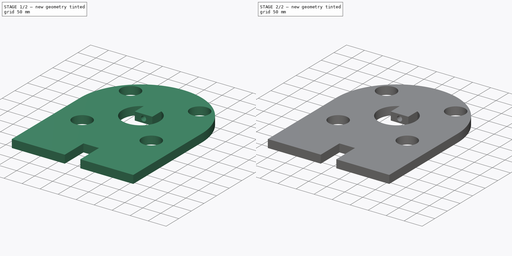
[diagram: build sequence overview — one tinted view per stage of 2, left to right]
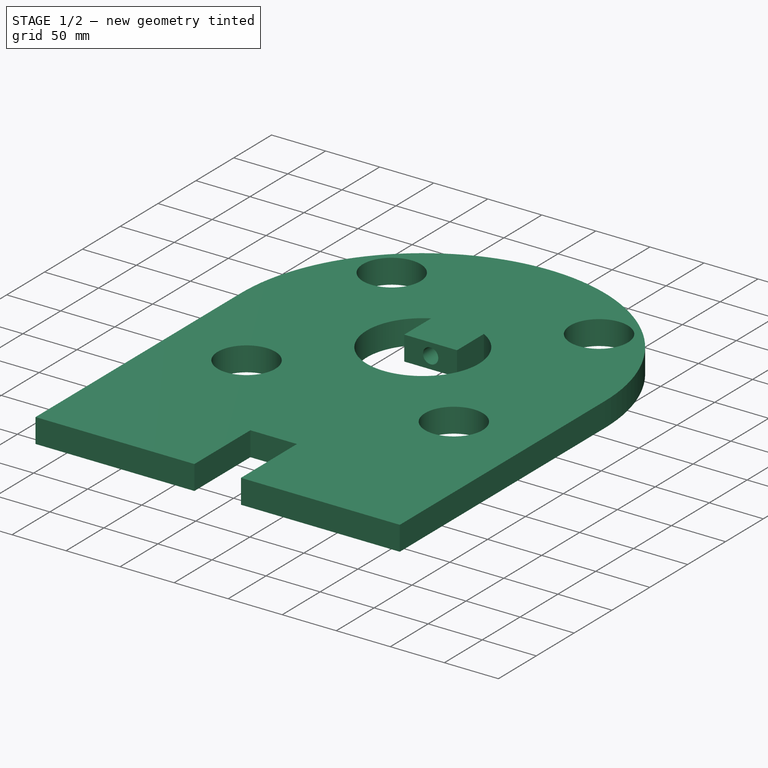
[diagram: stage 1 of 2 — iso view after this stage's code; geometry added in this stage tinted green]
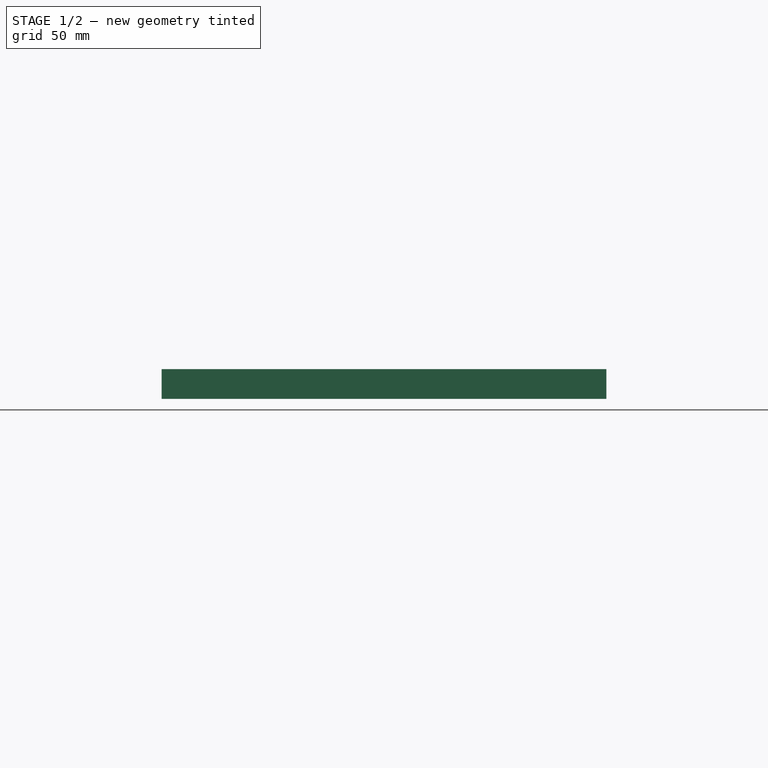
[diagram: stage 1 of 2 — front view after this stage's code; geometry added in this stage tinted green]
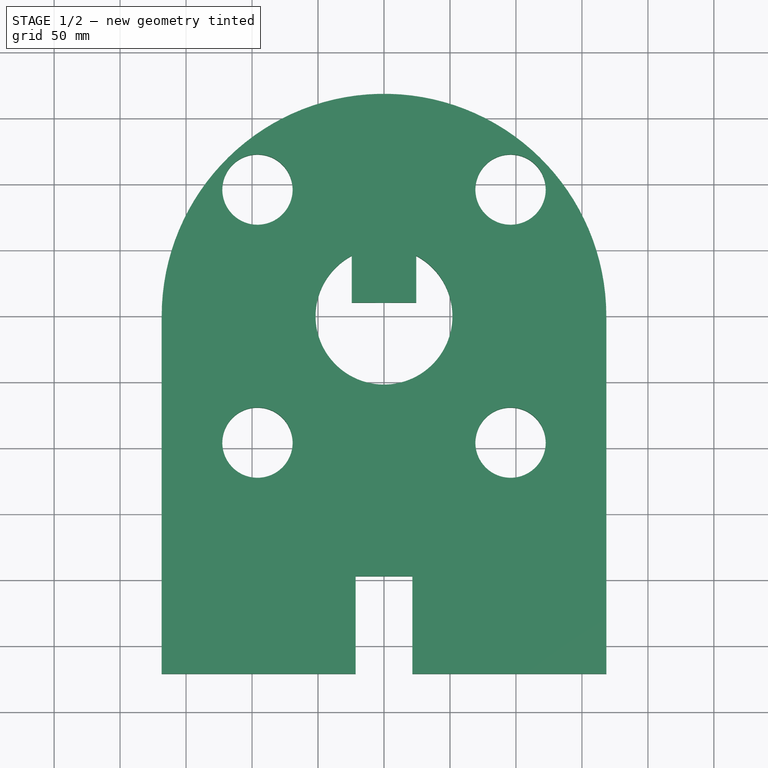
[diagram: stage 1 of 2 — top view after this stage's code; geometry added in this stage tinted green]
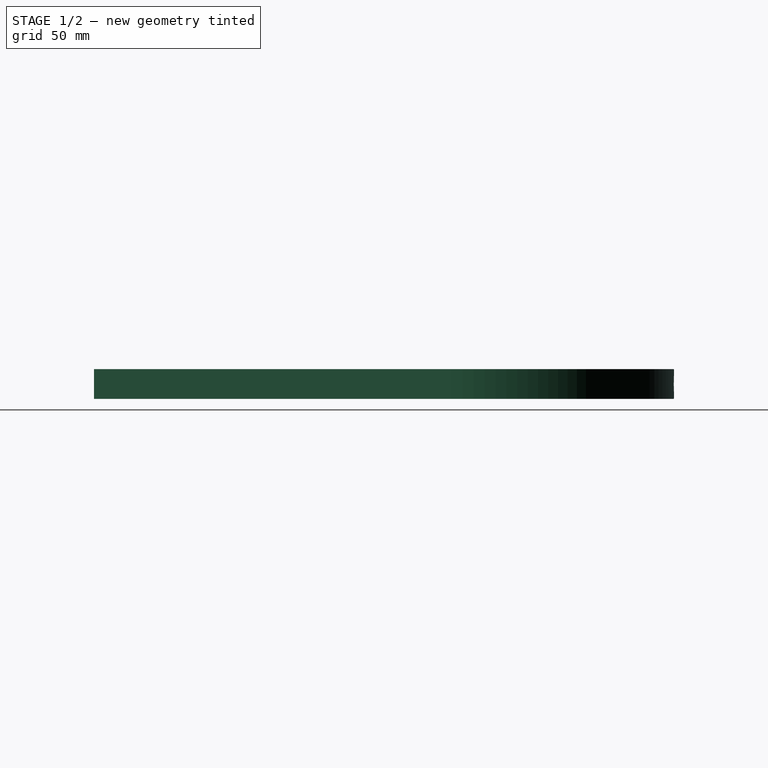
[diagram: stage 1 of 2 — right view after this stage's code; geometry added in this stage tinted green]
FCSTD DOCUMENT  (FreeCAD 0.14R3637 (Git))
Label: Vexta_motor_adapter_squared
License: CC-BY 3.0
LicenseURL: http://creativecommons.org/licenses/by/3.0/
objects: Sketcher::SketchObject×4, PartDesign::Pocket×3, PartDesign::Pad×1
note: 12 computed .brp shape members not serialized (recipe doc carries the construction recipe); baked Part::Feature solids carry a one-line shape summary decoded from their .brp

FEATURE [Sketcher::SketchObject] Sketch
  sketch-geometry (25):
    g0: Circle [constr] CenterX=0 CenterY=0 CenterZ=0 NormalX=0 NormalY=0 NormalZ=1 Radius=135.618
    g1: LineSegment [constr] StartX=95.8961 StartY=95.8961 StartZ=0 EndX=-95.8961 EndY=95.8961 EndZ=0
    g2: LineSegment [constr] StartX=-95.8961 StartY=95.8961 StartZ=0 EndX=-95.8961 EndY=-95.8961 EndZ=0
    g3: LineSegment [constr] StartX=-95.8961 StartY=-95.8961 StartZ=0 EndX=95.8961 EndY=-95.8961 EndZ=0
    g4: LineSegment [constr] StartX=95.8961 StartY=-95.8961 StartZ=0 EndX=95.8961 EndY=95.8961 EndZ=0
    g5: Circle CenterX=-95.8961 CenterY=95.8961 CenterZ=0 NormalX=0 NormalY=0 NormalZ=1 Radius=26.6524
    g6: Circle CenterX=-95.8961 CenterY=-95.8961 CenterZ=0 NormalX=0 NormalY=0 NormalZ=1 Radius=26.6524
    g7: Circle CenterX=95.8961 CenterY=-95.8961 CenterZ=0 NormalX=0 NormalY=0 NormalZ=1 Radius=26.6524
    g8: Circle CenterX=95.8961 CenterY=95.8961 CenterZ=0 NormalX=0 NormalY=0 NormalZ=1 Radius=26.6524
    g9: ArcOfCircle CenterX=0 CenterY=0 CenterZ=0 NormalX=0 NormalY=0 NormalZ=1 Radius=51.8819 StartAngle=2.06037 EndAngle=7.36441
    g10: LineSegment [constr] StartX=-24.3975 StartY=45.7875 StartZ=0 EndX=24.3975 EndY=45.7875 EndZ=0
    g11: LineSegment StartX=24.3975 StartY=45.7875 StartZ=0 EndX=24.3975 EndY=10.293 EndZ=0
    g12: LineSegment StartX=24.3975 StartY=10.293 StartZ=0 EndX=-24.3975 EndY=10.293 EndZ=0
    g13: LineSegment StartX=-24.3975 StartY=10.293 StartZ=0 EndX=-24.3975 EndY=45.7875 EndZ=0
    g14: ArcOfCircle CenterX=0 CenterY=0 CenterZ=0 NormalX=0 NormalY=0 NormalZ=1 Radius=168.48 StartAngle=0 EndAngle=3.14159
    g15: LineSegment [constr] StartX=-168.48 StartY=0 StartZ=0 EndX=168.48 EndY=0 EndZ=0
    g16: LineSegment StartX=168.48 StartY=0 StartZ=0 EndX=168.48 EndY=-271.053 EndZ=0
    g17: LineSegment StartX=168.48 StartY=-271.053 StartZ=0 EndX=21.541 EndY=-271.053 EndZ=0
    g18: LineSegment StartX=-168.48 StartY=-271.053 StartZ=0 EndX=-168.48 EndY=0 EndZ=0
    g19: GeomPoint [constr] X=-168.48 Y=0 Z=0
    g20: LineSegment StartX=-21.541 StartY=-197.088 StartZ=0 EndX=21.541 EndY=-197.088 EndZ=0
    g21: LineSegment StartX=21.541 StartY=-197.088 StartZ=0 EndX=21.541 EndY=-271.053 EndZ=0
    g22: LineSegment StartX=-21.541 StartY=-271.053 StartZ=0 EndX=-21.541 EndY=-197.088 EndZ=0
    g23: Circle [constr] CenterX=0 CenterY=-126.88 CenterZ=0 NormalX=0 NormalY=0 NormalZ=1 Radius=73.4383
    g24: LineSegment StartX=-21.541 StartY=-271.053 StartZ=0 EndX=-168.48 EndY=-271.053 EndZ=0
  constraints (58):
    c: Coincident(g1,g2)
    c: Coincident(g2,g3)
    c: Coincident(g3,g4)
    c: Coincident(g4,g1)
    c: Horizontal(g1)
    c: Horizontal(g3)
    c: Vertical(g2)
    c: Vertical(g4)
    c: PointOnObject(g1,g0)
    c: PointOnObject(g2,g0)
    c: PointOnObject(g1,g0)
    c: Coincident(g-1,g0)
    c: Equal(g2,g1)
    c: Coincident(g5,g1)
    c: Coincident(g6,g2)
    c: Coincident(g8,g1)
    c: Coincident(g7,g3)
    c: Equal(g8,g7)
    c: Equal(g7,g5)
    c: Equal(g5,g6)
    c: Coincident(g9,g-1)
    c: Coincident(g11,g12)
    c: Coincident(g12,g13)
    c: Horizontal(g10)
    c: Horizontal(g12)
    c: Vertical(g11)
    c: Vertical(g13)
    c: PointOnObject(g13,g9)
    c: PointOnObject(g11,g9)
    c: Coincident(g14,g-1)
    c: Coincident(g9,g10)
    c: Coincident(g9,g10)
    c: Coincident(g16,g17)
    c: Coincident(g24,g18)
    c: Coincident(g18,g15)
    c: Horizontal(g15)
    c: Horizontal(g17)
    c: Vertical(g16)
    c: Vertical(g18)
    c: PointOnObject(g16,g14)
    c: Equal(g12,g10)
    c: Coincident(g13,g9)
    c: PointOnObject(g19,g-1)
    c: PointOnObject(g19,g14)
    c: Coincident(g15,g19)
    c: Coincident(g20,g21)
    c: Coincident(g22,g20)
    c: Horizontal(g20)
    c: Vertical(g21)
    c: Vertical(g22)
    c: PointOnObject(g23,g-2)
    c: PointOnObject(g20,g23)
    c: PointOnObject(g20,g23)
    c: Tangent(g17,g24)
    c: Coincident(g22,g24)
    c: Coincident(g21,g17)
    c: Coincident(g14,g15)
    c: PointOnObject(g14,g15)
FEATURE [PartDesign::Pad] Pad
  Length = 22.5
  Length2 = 100
  Sketch = -> Sketch
  Type = 0
FEATURE [Sketcher::SketchObject] Sketch001
  ExternalGeometry = -> [Pad]
  Placement = pos=(0,10.293,0) rot=(1,0,0;1.5708rad)
  Support = -> Pad [Face11]
  sketch-geometry (2):
    g0: Circle [constr] CenterX=0 CenterY=11.25 CenterZ=0 NormalX=0 NormalY=0 NormalZ=1 Radius=26.8663
    g1: Circle CenterX=0 CenterY=11.25 CenterZ=0 NormalX=0 NormalY=0 NormalZ=1 Radius=7.06088
  constraints (4):
    c: PointOnObject(g0,g-2)
    c: PointOnObject(g-3,g0)
    c: PointOnObject(g-4,g0)
    c: Coincident(g1,g0)
FEATURE [PartDesign::Pocket] Pocket
  Length = 5
  Sketch = -> Sketch001
  Type = 1
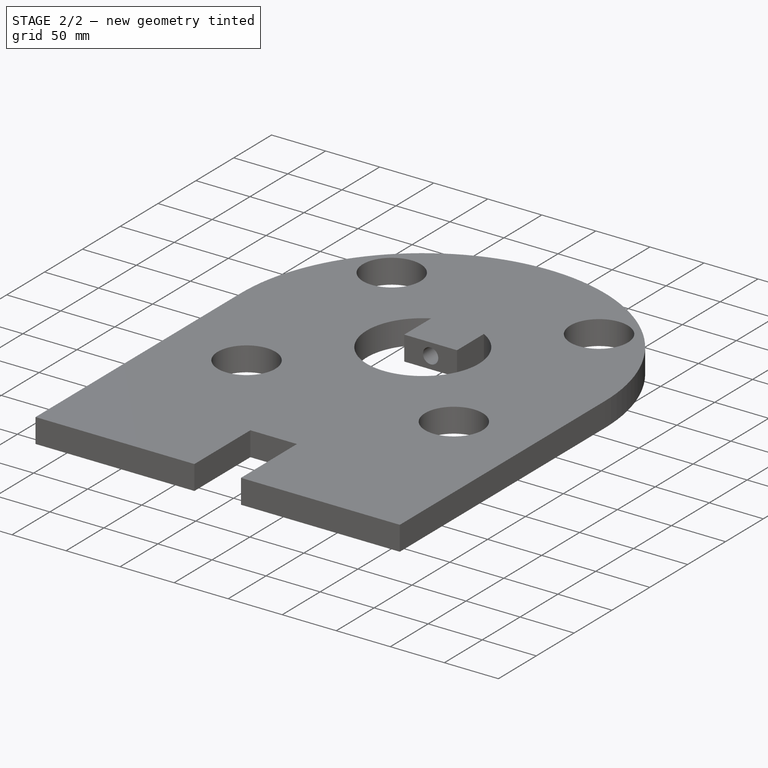
[diagram: stage 2 of 2 — iso view after this stage's code; geometry added in this stage tinted green]
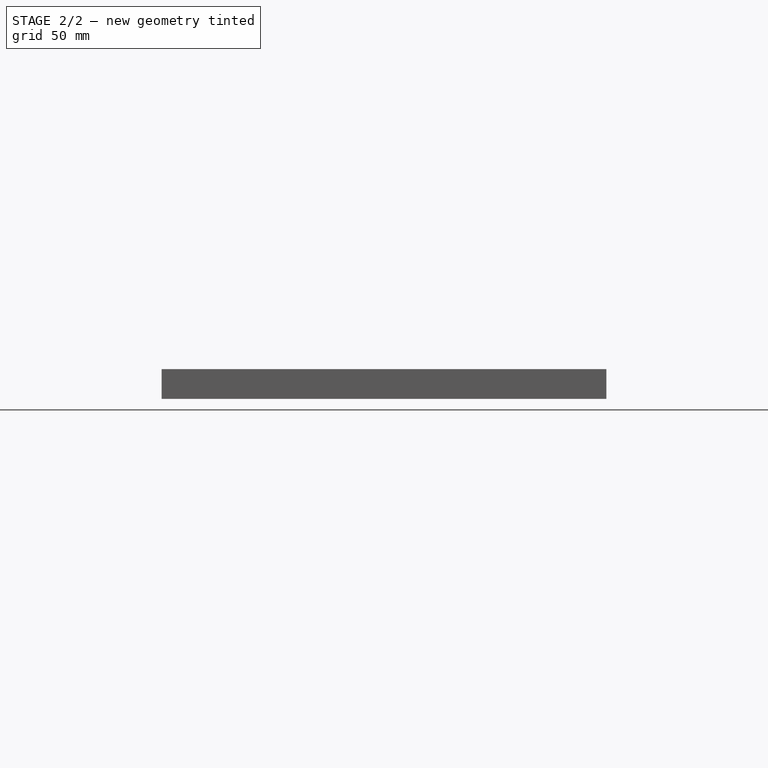
[diagram: stage 2 of 2 — front view after this stage's code; geometry added in this stage tinted green]
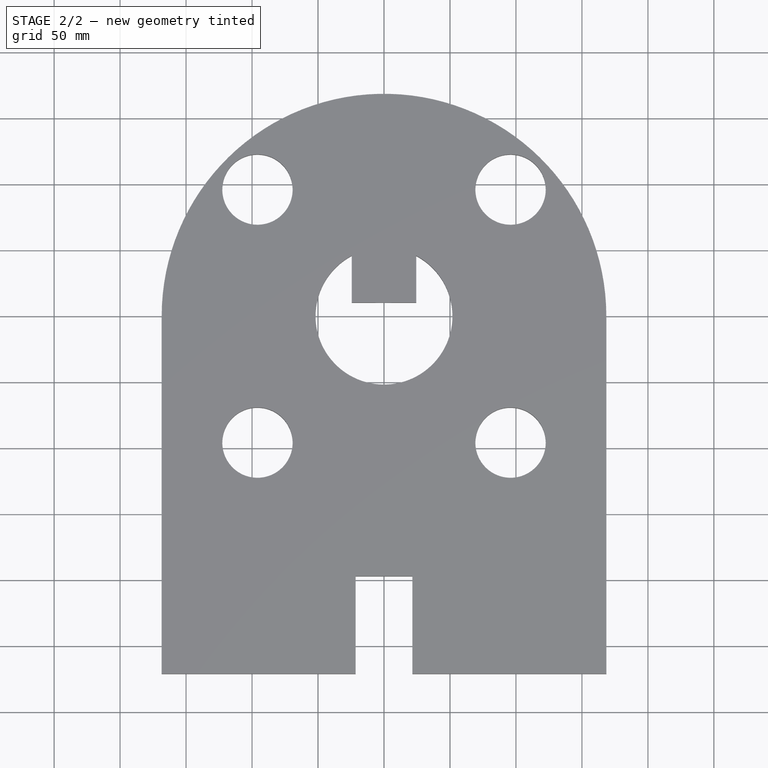
[diagram: stage 2 of 2 — top view after this stage's code; geometry added in this stage tinted green]
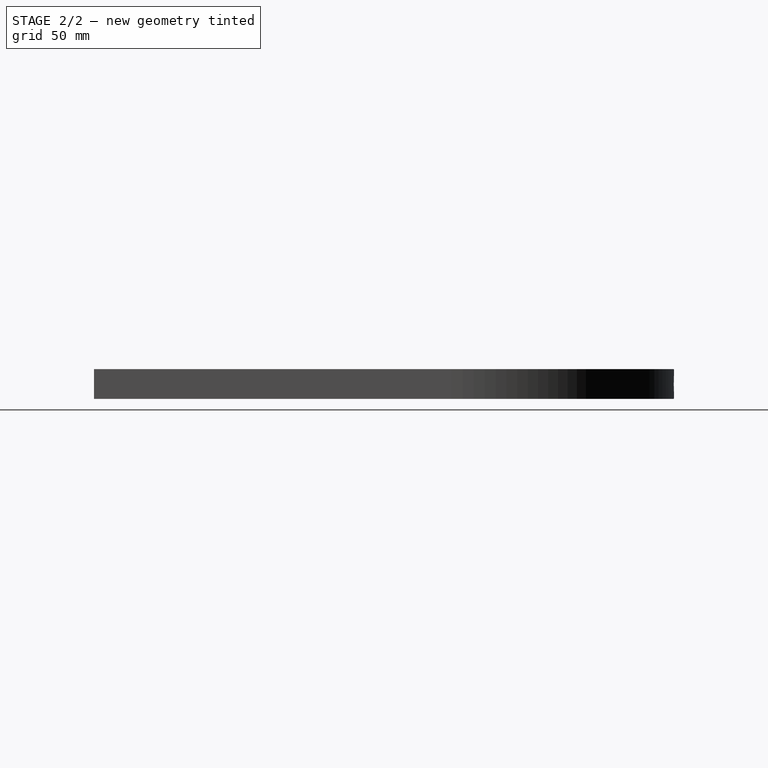
[diagram: stage 2 of 2 — right view after this stage's code; geometry added in this stage tinted green]
FEATURE [Sketcher::SketchObject] Sketch002
  Placement = pos=(21.541,0,0) rot=(0.57735,-0.57735,-0.57735;2.0944rad)
  Support = -> Pocket [Face7]
  sketch-geometry (13):
    g0: Circle [constr] CenterX=234.071 CenterY=11.25 CenterZ=0 NormalX=0 NormalY=0 NormalZ=1 Radius=38.6558
    g1: LineSegment [constr] StartX=234.071 StartY=11.25 StartZ=0 EndX=271.053 EndY=11.25 EndZ=0
    g2: LineSegment [constr] StartX=271.053 StartY=11.25 StartZ=0 EndX=271.053 EndY=0 EndZ=0
    g3: LineSegment StartX=271.053 StartY=0 StartZ=0 EndX=234.071 EndY=0 EndZ=0
    g4: LineSegment [constr] StartX=234.071 StartY=0 StartZ=0 EndX=234.071 EndY=11.25 EndZ=0
    g5: Circle [constr] CenterX=252.562 CenterY=11.25 CenterZ=0 NormalX=0 NormalY=0 NormalZ=1 Radius=18.4913
    g6: Circle CenterX=252.562 CenterY=11.25 CenterZ=0 NormalX=0 NormalY=0 NormalZ=1 Radius=6.77066
    g7: LineSegment StartX=197.088 StartY=22.5 StartZ=0 EndX=234.071 EndY=22.5 EndZ=0
    g8: LineSegment [constr] StartX=234.071 StartY=22.5 StartZ=0 EndX=234.071 EndY=11.25 EndZ=0
    g9: LineSegment [constr] StartX=234.071 StartY=11.25 StartZ=0 EndX=197.088 EndY=11.25 EndZ=0
    g10: LineSegment [constr] StartX=197.088 StartY=11.25 StartZ=0 EndX=197.088 EndY=22.5 EndZ=0
    g11: Circle [constr] CenterX=213.869 CenterY=11.25 CenterZ=0 NormalX=0 NormalY=0 NormalZ=1 Radius=20.2024
    g12: Circle CenterX=213.869 CenterY=11.25 CenterZ=0 NormalX=0 NormalY=0 NormalZ=1 Radius=6.77066
  constraints (27):
    c: Coincident(g1,g2)
    c: Coincident(g2,g3)
    c: Coincident(g3,g4)
    c: Coincident(g4,g1)
    c: Horizontal(g1)
    c: Horizontal(g3)
    c: Vertical(g2)
    c: Vertical(g4)
    c: Coincident(g1,g0)
    c: PointOnObject(g5,g1)
    c: PointOnObject(g0,g5)
    c: PointOnObject(g1,g5)
    c: Coincident(g6,g5)
    c: Coincident(g7,g8)
    c: Coincident(g8,g9)
    c: Coincident(g9,g10)
    c: Coincident(g10,g7)
    c: Horizontal(g7)
    c: Horizontal(g9)
    c: Vertical(g8)
    c: Vertical(g10)
    c: Coincident(g8,g0)
    c: PointOnObject(g11,g9)
    c: PointOnObject(g7,g11)
    c: PointOnObject(g0,g11)
    c: Coincident(g12,g11)
    c: Equal(g12,g6)
FEATURE [Sketcher::SketchObject] Sketch003
  Placement = pos=(-21.541,0,0) rot=(0.57735,0.57735,0.57735;2.0944rad)
  Support = -> Pocket [Face1]
  sketch-geometry (13):
    g0: Circle [constr] CenterX=-234.071 CenterY=11.25 CenterZ=0 NormalX=0 NormalY=0 NormalZ=1 Radius=38.6558
    g1: LineSegment [constr] StartX=-271.053 StartY=22.5 StartZ=0 EndX=-234.071 EndY=22.5 EndZ=0
    g2: LineSegment StartX=-234.071 StartY=22.5 StartZ=0 EndX=-234.071 EndY=11.25 EndZ=0
    g3: LineSegment [constr] StartX=-234.071 StartY=11.25 StartZ=0 EndX=-271.053 EndY=11.25 EndZ=0
    g4: LineSegment [constr] StartX=-271.053 StartY=11.25 StartZ=0 EndX=-271.053 EndY=22.5 EndZ=0
    g5: LineSegment [constr] StartX=-234.071 StartY=22.5 StartZ=0 EndX=-197.088 EndY=22.5 EndZ=0
    g6: LineSegment [constr] StartX=-197.088 StartY=22.5 StartZ=0 EndX=-197.088 EndY=11.25 EndZ=0
    g7: LineSegment [constr] StartX=-197.088 StartY=11.25 StartZ=0 EndX=-234.071 EndY=11.25 EndZ=0
    g8: LineSegment StartX=-234.071 StartY=11.25 StartZ=0 EndX=-234.071 EndY=22.5 EndZ=0
    g9: Circle [constr] CenterX=-252.562 CenterY=11.25 CenterZ=0 NormalX=0 NormalY=0 NormalZ=1 Radius=18.4913
    g10: Circle CenterX=-252.562 CenterY=11.25 CenterZ=0 NormalX=0 NormalY=0 NormalZ=1 Radius=5.28024
    g11: Circle [constr] CenterX=-215.58 CenterY=11.25 CenterZ=0 NormalX=0 NormalY=0 NormalZ=1 Radius=18.4913
    g12: Circle CenterX=-215.58 CenterY=11.25 CenterZ=0 NormalX=0 NormalY=0 NormalZ=1 Radius=5.28024
  constraints (27):
    c: Coincident(g1,g2)
    c: Coincident(g2,g3)
    c: Coincident(g3,g4)
    c: Coincident(g4,g1)
    c: Horizontal(g1)
    c: Horizontal(g3)
    c: Vertical(g2)
    c: Vertical(g4)
    c: Coincident(g5,g6)
    c: Coincident(g6,g7)
    c: Coincident(g7,g8)
    c: Coincident(g8,g5)
    c: Horizontal(g5)
    c: Horizontal(g7)
    c: Vertical(g6)
    c: Vertical(g8)
    c: Coincident(g0,g2)
    c: Coincident(g7,g0)
    c: PointOnObject(g9,g3)
    c: PointOnObject(g0,g9)
    c: PointOnObject(g3,g9)
    c: Coincident(g9,g10)
    c: PointOnObject(g11,g7)
    c: PointOnObject(g0,g11)
    c: PointOnObject(g6,g11)
    c: Coincident(g12,g11)
    c: Equal(g10,g12)
FEATURE [PartDesign::Pocket] Pocket001
  Length = 5
  Sketch = -> Sketch003
  Type = 1
FEATURE [PartDesign::Pocket] Pocket002
  Length = 5
  Sketch = -> Sketch002
  Type = 1
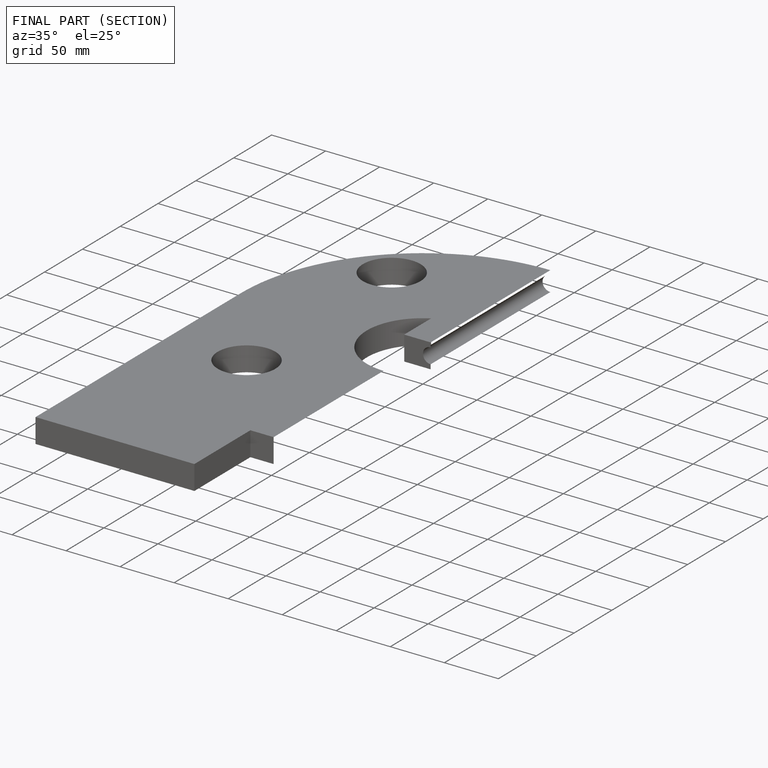
[diagram: finished part — half-section view (interior)]
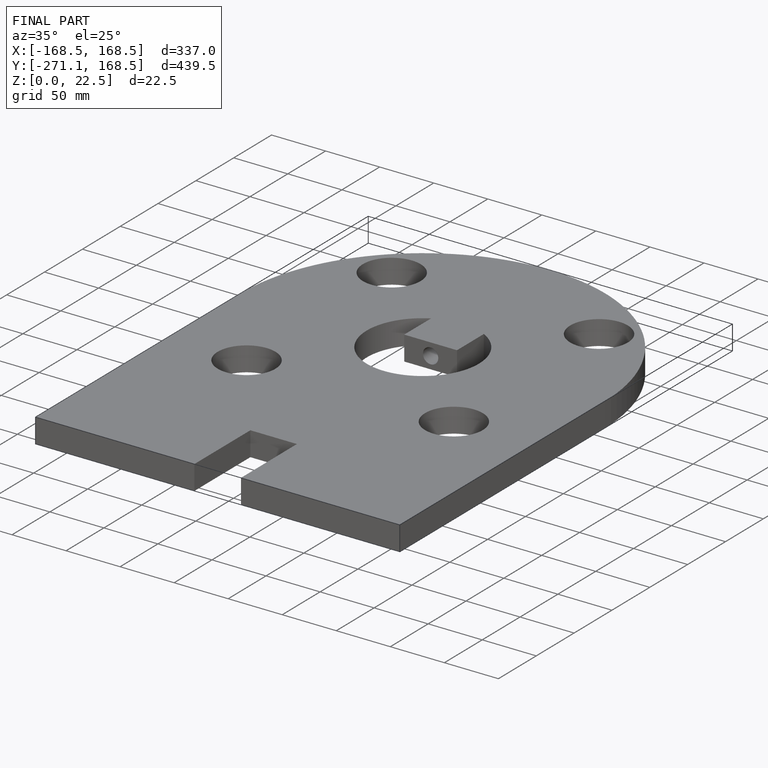
[diagram: finished part — iso view with bounding-box wireframe]
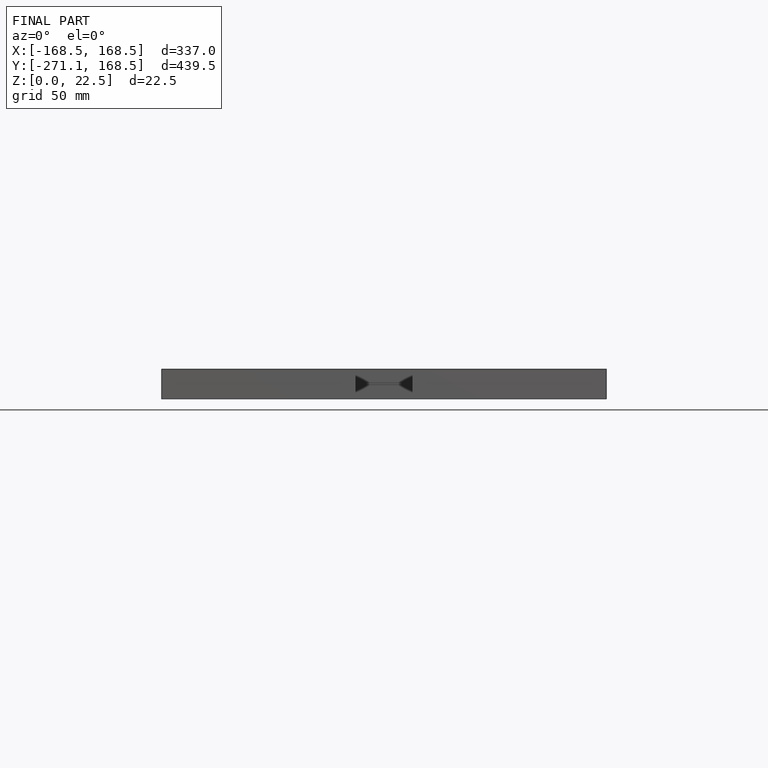
[diagram: finished part — front view with bounding-box wireframe]
